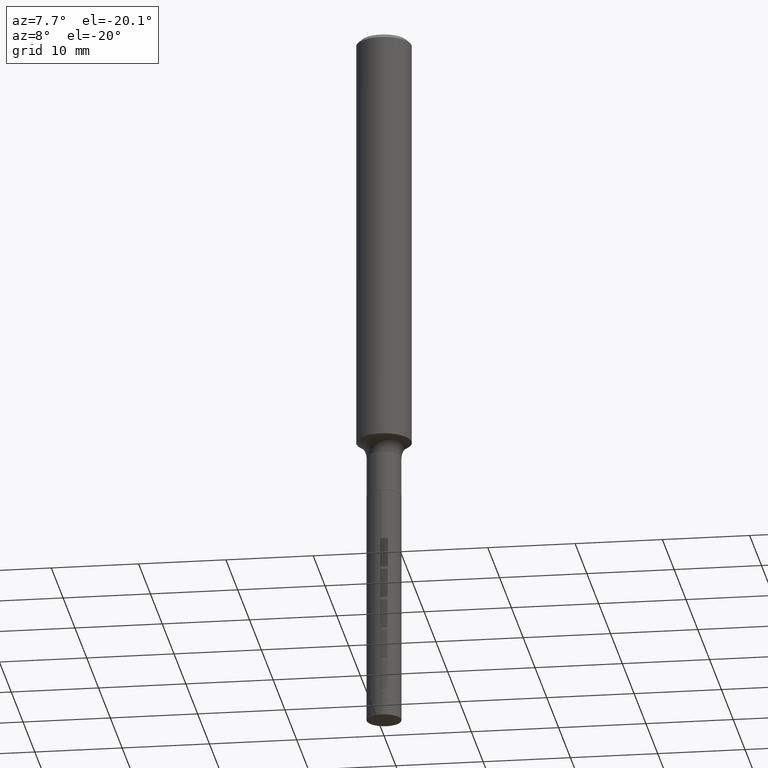
[diagram: clean part render]
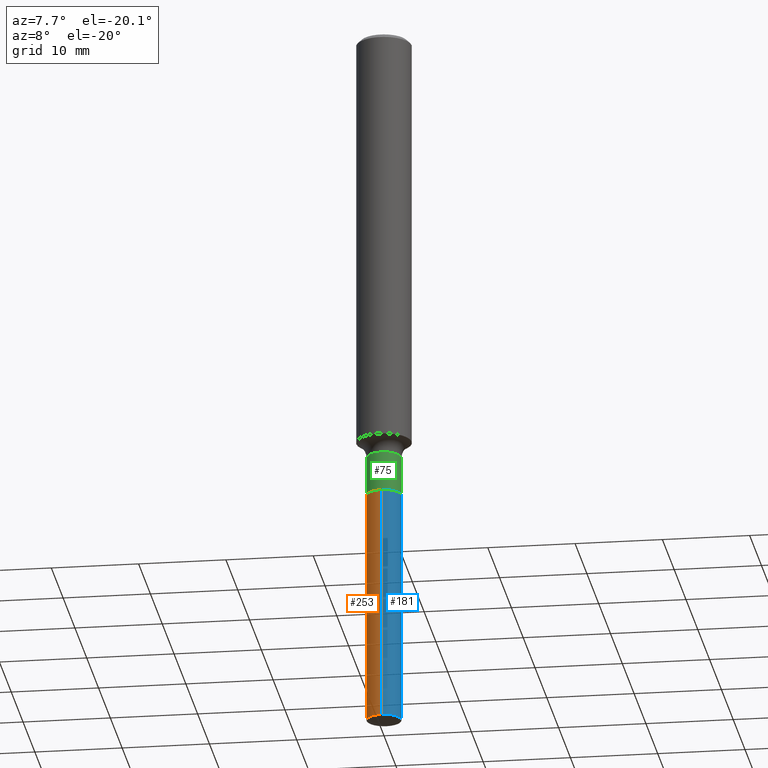
[diagram: same view with three faces highlighted in distinct colors, each labeled with its STEP entity id]
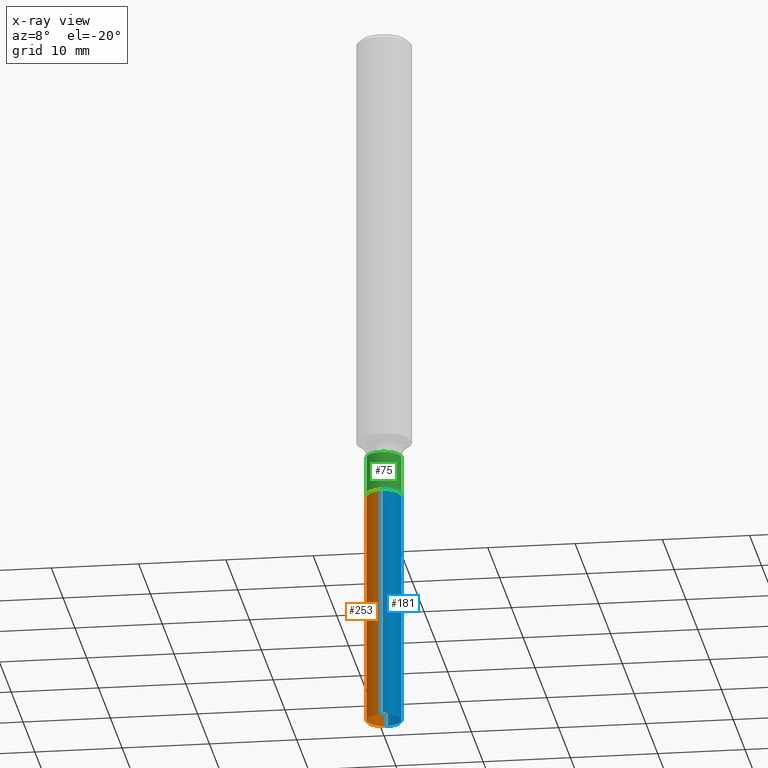
[diagram: x-ray of the same camera — body ghosted, the three highlighted faces saturated]
A machine part, auxiliary view with three faces highlighted in distinct colors.
The next image is the same camera in x-ray (body ghosted, the three faces saturated) — at least one of them is partly hidden behind the body in this view.
Their STEP definitions:

[orange] entity #253 — the highlighted cylindrical surface (edge-blend (fillet) strip) has radius 1.9837 mm, axis along (-0, 0, 1).
#7 = ORIENTED_EDGE ( 'NONE', *, *, #40, .F. ) ;
#29 = AXIS2_PLACEMENT_3D ( 'NONE', #96, #244, #170 ) ;
#40 = EDGE_CURVE ( 'NONE', #317, #228, #450, .T. ) ;
#48 = ORIENTED_EDGE ( 'NONE', *, *, #335, .T. ) ;
#55 = DIRECTION ( 'NONE',  ( -2.445358252114275326E-29, 3.491639658564965907E-15, 1.000000000000000000 ) ) ;
#56 = VERTEX_POINT ( 'NONE', #115 ) ;
#66 = DIRECTION ( 'NONE',  ( -6.982962677686265133E-15, -1.000000000000000000, 3.497884755011860410E-15 ) ) ;
#76 = CIRCLE ( 'NONE', #187, 0.07810000000000000275 ) ;
#96 = CARTESIAN_POINT ( 'NONE',  ( 7.887436151578645056E-29, -1.126150646944370248E-14, -3.225375164588551780 ) ) ;
#102 = CARTESIAN_POINT ( 'NONE',  ( -5.453693851272445827E-16, -0.07810000000000752451, -2.156200000000000117 ) ) ;
#105 = CARTESIAN_POINT ( 'NONE',  ( 5.549338766287173480E-16, 0.07809999999998876175, -3.225375164588551780 ) ) ;
#115 = CARTESIAN_POINT ( 'NONE',  ( -5.453693851272187475E-16, -0.07810000000001129927, -3.225375164588551780 ) ) ;
#132 = CARTESIAN_POINT ( 'NONE',  ( 5.272919839896391955E-29, -7.528332062813591757E-15, -2.156200000000000561 ) ) ;
#133 = CARTESIAN_POINT ( 'NONE',  ( -5.453693851272445827E-16, -0.07810000000000752451, -2.156200000000000117 ) ) ;
#138 = CARTESIAN_POINT ( 'NONE',  ( 5.272919839896391955E-29, -7.528332062813591757E-15, -2.156200000000000561 ) ) ;
#145 = EDGE_CURVE ( 'NONE', #56, #274, #171, .T. ) ;
#170 = DIRECTION ( 'NONE',  ( -6.982962677686265133E-15, -1.000000000000000000, 0.000000000000000000 ) ) ;
#171 = LINE ( 'NONE', #133, #260 ) ;
#187 = AXIS2_PLACEMENT_3D ( 'NONE', #138, #55, #398 ) ;
#188 = EDGE_LOOP ( 'NONE', ( #7, #48, #351, #358 ) ) ;
#216 = FACE_OUTER_BOUND ( 'NONE', #188, .T. ) ;
#228 = VERTEX_POINT ( 'NONE', #291 ) ;
#230 = CARTESIAN_POINT ( 'NONE',  ( 5.549338766286909212E-16, 0.07809999999999246711, -2.156200000000000561 ) ) ;
#244 = DIRECTION ( 'NONE',  ( -2.445358252114275326E-29, 3.491639658564965907E-15, 1.000000000000000000 ) ) ;
#250 = DIRECTION ( 'NONE',  ( -2.445358252114275326E-29, 3.491639658564965907E-15, 1.000000000000000000 ) ) ;
#253 = ADVANCED_FACE ( 'NONE', ( #216 ), #427, .T. ) ;
#260 = VECTOR ( 'NONE', #397, 39.37007874015748143 ) ;
#267 = DIRECTION ( 'NONE',  ( -2.445358252114275326E-29, 3.491639658564966301E-15, 1.000000000000000000 ) ) ;
#274 = VERTEX_POINT ( 'NONE', #102 ) ;
#291 = CARTESIAN_POINT ( 'NONE',  ( 5.549338766287172494E-16, 0.07809999999999246711, -2.156200000000000561 ) ) ;
#302 = CIRCLE ( 'NONE', #29, 0.07810000000000000275 ) ;
#303 = EDGE_CURVE ( 'NONE', #228, #274, #76, .T. ) ;
#317 = VERTEX_POINT ( 'NONE', #105 ) ;
#318 = VECTOR ( 'NONE', #267, 39.37007874015748143 ) ;
#335 = EDGE_CURVE ( 'NONE', #317, #56, #302, .T. ) ;
#351 = ORIENTED_EDGE ( 'NONE', *, *, #145, .T. ) ;
#358 = ORIENTED_EDGE ( 'NONE', *, *, #303, .F. ) ;
#394 = AXIS2_PLACEMENT_3D ( 'NONE', #132, #250, #66 ) ;
#397 = DIRECTION ( 'NONE',  ( -2.445358252114275326E-29, 3.491639658564966301E-15, 1.000000000000000000 ) ) ;
#398 = DIRECTION ( 'NONE',  ( -6.982962677686265133E-15, -1.000000000000000000, 3.497884755011860410E-15 ) ) ;
#427 = CYLINDRICAL_SURFACE ( 'NONE', #394, 0.07810000000000000275 ) ;
#450 = LINE ( 'NONE', #230, #318 ) ;

[blue] entity #181 — the highlighted cylindrical surface (edge-blend (fillet) strip) has radius 1.9837 mm, axis along (-0, 0, 1).
#40 = EDGE_CURVE ( 'NONE', #317, #228, #450, .T. ) ;
#46 = ORIENTED_EDGE ( 'NONE', *, *, #145, .F. ) ;
#52 = DIRECTION ( 'NONE',  ( -6.982962677686265133E-15, -1.000000000000000000, 0.000000000000000000 ) ) ;
#56 = VERTEX_POINT ( 'NONE', #115 ) ;
#60 = CIRCLE ( 'NONE', #445, 0.07810000000000000275 ) ;
#102 = CARTESIAN_POINT ( 'NONE',  ( -5.453693851272445827E-16, -0.07810000000000752451, -2.156200000000000117 ) ) ;
#105 = CARTESIAN_POINT ( 'NONE',  ( 5.549338766287173480E-16, 0.07809999999998876175, -3.225375164588551780 ) ) ;
#113 = CIRCLE ( 'NONE', #435, 0.07810000000000000275 ) ;
#115 = CARTESIAN_POINT ( 'NONE',  ( -5.453693851272187475E-16, -0.07810000000001129927, -3.225375164588551780 ) ) ;
#130 = DIRECTION ( 'NONE',  ( -2.445358252114275326E-29, 3.491639658564965907E-15, 1.000000000000000000 ) ) ;
#133 = CARTESIAN_POINT ( 'NONE',  ( -5.453693851272445827E-16, -0.07810000000000752451, -2.156200000000000117 ) ) ;
#145 = EDGE_CURVE ( 'NONE', #56, #274, #171, .T. ) ;
#158 = ORIENTED_EDGE ( 'NONE', *, *, #165, .T. ) ;
#163 = DIRECTION ( 'NONE',  ( -2.445358252114275326E-29, 3.491639658564965907E-15, 1.000000000000000000 ) ) ;
#165 = EDGE_CURVE ( 'NONE', #56, #317, #60, .T. ) ;
#167 = AXIS2_PLACEMENT_3D ( 'NONE', #232, #163, #289 ) ;
#171 = LINE ( 'NONE', #133, #260 ) ;
#181 = ADVANCED_FACE ( 'NONE', ( #296 ), #408, .T. ) ;
#228 = VERTEX_POINT ( 'NONE', #291 ) ;
#230 = CARTESIAN_POINT ( 'NONE',  ( 5.549338766286909212E-16, 0.07809999999999246711, -2.156200000000000561 ) ) ;
#232 = CARTESIAN_POINT ( 'NONE',  ( 5.272919839896391955E-29, -7.528332062813591757E-15, -2.156200000000000561 ) ) ;
#235 = ORIENTED_EDGE ( 'NONE', *, *, #268, .F. ) ;
#245 = ORIENTED_EDGE ( 'NONE', *, *, #40, .T. ) ;
#260 = VECTOR ( 'NONE', #397, 39.37007874015748143 ) ;
#267 = DIRECTION ( 'NONE',  ( -2.445358252114275326E-29, 3.491639658564966301E-15, 1.000000000000000000 ) ) ;
#268 = EDGE_CURVE ( 'NONE', #274, #228, #113, .T. ) ;
#274 = VERTEX_POINT ( 'NONE', #102 ) ;
#289 = DIRECTION ( 'NONE',  ( -6.982962677686265133E-15, -1.000000000000000000, 3.497884755011860410E-15 ) ) ;
#291 = CARTESIAN_POINT ( 'NONE',  ( 5.549338766287172494E-16, 0.07809999999999246711, -2.156200000000000561 ) ) ;
#296 = FACE_OUTER_BOUND ( 'NONE', #375, .T. ) ;
#312 = CARTESIAN_POINT ( 'NONE',  ( 7.887436151578645056E-29, -1.126150646944370248E-14, -3.225375164588551780 ) ) ;
#317 = VERTEX_POINT ( 'NONE', #105 ) ;
#318 = VECTOR ( 'NONE', #267, 39.37007874015748143 ) ;
#327 = CARTESIAN_POINT ( 'NONE',  ( 5.272919839896391955E-29, -7.528332062813591757E-15, -2.156200000000000561 ) ) ;
#375 = EDGE_LOOP ( 'NONE', ( #158, #245, #235, #46 ) ) ;
#383 = DIRECTION ( 'NONE',  ( -2.445358252114275326E-29, 3.491639658564965907E-15, 1.000000000000000000 ) ) ;
#397 = DIRECTION ( 'NONE',  ( -2.445358252114275326E-29, 3.491639658564966301E-15, 1.000000000000000000 ) ) ;
#408 = CYLINDRICAL_SURFACE ( 'NONE', #167, 0.07810000000000000275 ) ;
#435 = AXIS2_PLACEMENT_3D ( 'NONE', #327, #130, #473 ) ;
#445 = AXIS2_PLACEMENT_3D ( 'NONE', #312, #383, #52 ) ;
#450 = LINE ( 'NONE', #230, #318 ) ;
#473 = DIRECTION ( 'NONE',  ( -6.982962677686265133E-15, -1.000000000000000000, 3.497884755011860410E-15 ) ) ;

[green] entity #75 — the highlighted cylindrical surface (edge-blend (fillet) strip) has radius 1.9837 mm, axis along (-0, 0, 1).
#8 = CIRCLE ( 'NONE', #402, 0.07809999999999997500 ) ;
#21 = LINE ( 'NONE', #430, #108 ) ;
#27 = CARTESIAN_POINT ( 'NONE',  ( -0.07809999999999997500, -6.658990291622127289E-15, -1.976599999999999913 ) ) ;
#45 = FACE_OUTER_BOUND ( 'NONE', #366, .T. ) ;
#75 = ADVANCED_FACE ( 'NONE', ( #45 ), #344, .T. ) ;
#88 = CARTESIAN_POINT ( 'NONE',  ( 0.000000000000000000, 0.000000000000000000, 0.000000000000000000 ) ) ;
#89 = VECTOR ( 'NONE', #458, 39.37007874015748143 ) ;
#93 = DIRECTION ( 'NONE',  ( -2.445468806185136597E-29, 3.491481338843145583E-15, 1.000000000000000000 ) ) ;
#108 = VECTOR ( 'NONE', #395, 39.37007874015748143 ) ;
#110 = EDGE_CURVE ( 'NONE', #378, #204, #345, .T. ) ;
#122 = DIRECTION ( 'NONE',  ( 1.000000000000000000, -6.982962677686267499E-15, 4.876176775795936353E-29 ) ) ;
#124 = ORIENTED_EDGE ( 'NONE', *, *, #314, .T. ) ;
#154 = CARTESIAN_POINT ( 'NONE',  ( 0.07810000000000000275, -8.071955707271467690E-15, -2.155700000000000394 ) ) ;
#192 = VERTEX_POINT ( 'NONE', #391 ) ;
#196 = DIRECTION ( 'NONE',  ( -2.445468806185136597E-29, 3.491481338843145583E-15, 1.000000000000000000 ) ) ;
#204 = VERTEX_POINT ( 'NONE', #27 ) ;
#214 = DIRECTION ( 'NONE',  ( 1.000000000000000000, -6.982962677686266711E-15, 0.000000000000000000 ) ) ;
#231 = CARTESIAN_POINT ( 'NONE',  ( -0.07810000000000000275, -6.658990291622127289E-15, -2.155700000000000394 ) ) ;
#271 = AXIS2_PLACEMENT_3D ( 'NONE', #320, #283, #214 ) ;
#280 = DIRECTION ( 'NONE',  ( 1.000000000000000000, -6.982962677686269077E-15, 0.000000000000000000 ) ) ;
#283 = DIRECTION ( 'NONE',  ( -2.445468806185136597E-29, 3.491481338843145583E-15, 1.000000000000000000 ) ) ;
#284 = ORIENTED_EDGE ( 'NONE', *, *, #110, .F. ) ;
#286 = EDGE_CURVE ( 'NONE', #204, #192, #8, .T. ) ;
#310 = CARTESIAN_POINT ( 'NONE',  ( -0.07809999999999997500, 5.549338766286380675E-16, -3.841688305489080574E-30 ) ) ;
#314 = EDGE_CURVE ( 'NONE', #378, #388, #356, .T. ) ;
#320 = CARTESIAN_POINT ( 'NONE',  ( 5.271697105493300275E-29, -7.526586322144169465E-15, -2.155700000000000394 ) ) ;
#322 = EDGE_CURVE ( 'NONE', #388, #192, #21, .T. ) ;
#344 = CYLINDRICAL_SURFACE ( 'NONE', #446, 0.07809999999999997500 ) ;
#345 = LINE ( 'NONE', #310, #89 ) ;
#356 = CIRCLE ( 'NONE', #271, 0.07810000000000000275 ) ;
#366 = EDGE_LOOP ( 'NONE', ( #284, #124, #492, #431 ) ) ;
#378 = VERTEX_POINT ( 'NONE', #231 ) ;
#388 = VERTEX_POINT ( 'NONE', #154 ) ;
#391 = CARTESIAN_POINT ( 'NONE',  ( 0.07809999999999997500, -7.446631399484659079E-15, -1.976599999999999913 ) ) ;
#395 = DIRECTION ( 'NONE',  ( -2.445468806185136877E-29, 3.491481338843145188E-15, 1.000000000000000000 ) ) ;
#402 = AXIS2_PLACEMENT_3D ( 'NONE', #484, #93, #280 ) ;
#430 = CARTESIAN_POINT ( 'NONE',  ( 0.07809999999999997500, -5.453693851272973378E-16, 3.808294061896625002E-30 ) ) ;
#431 = ORIENTED_EDGE ( 'NONE', *, *, #286, .F. ) ;
#446 = AXIS2_PLACEMENT_3D ( 'NONE', #88, #196, #122 ) ;
#458 = DIRECTION ( 'NONE',  ( -2.445468806185136877E-29, 3.491481338843145188E-15, 1.000000000000000000 ) ) ;
#484 = CARTESIAN_POINT ( 'NONE',  ( 4.833713642305540959E-29, -6.901262014357360854E-15, -1.976599999999999913 ) ) ;
#492 = ORIENTED_EDGE ( 'NONE', *, *, #322, .T. ) ;